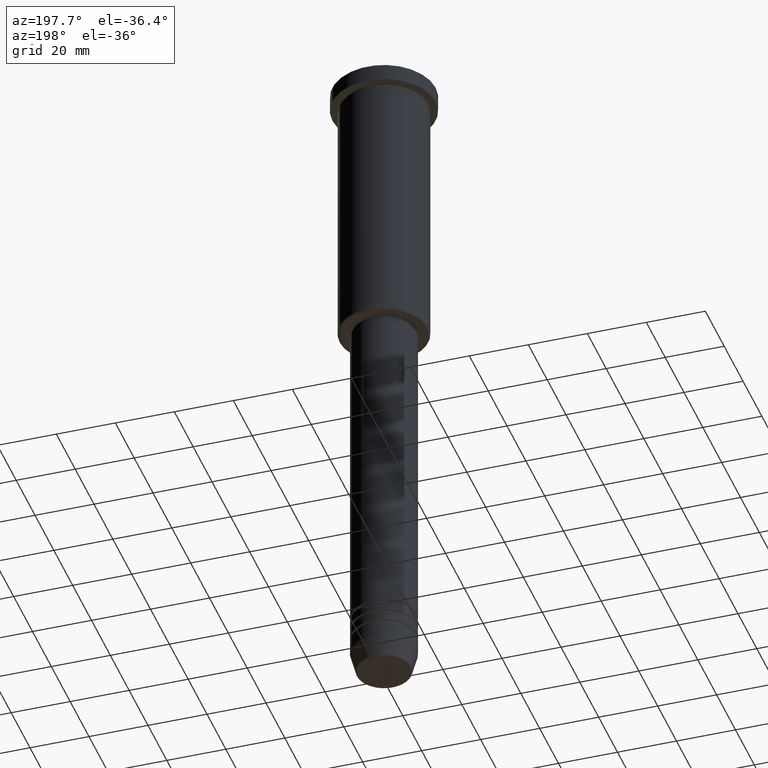
[diagram: clean part render]
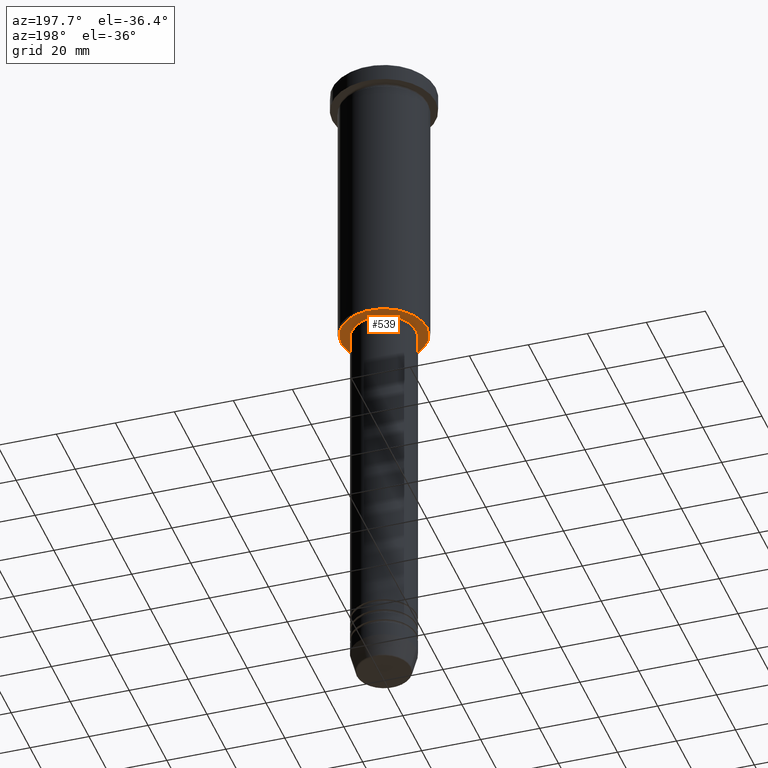
[diagram: same view with one face highlighted and labeled with its STEP entity id]
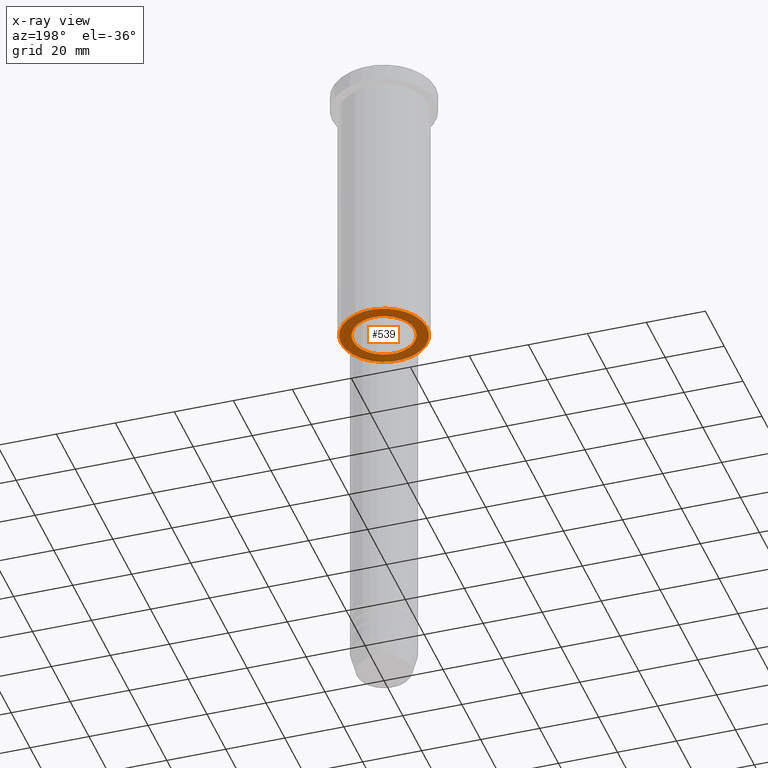
[diagram: x-ray of the same camera — body ghosted, the highlighted face saturated]
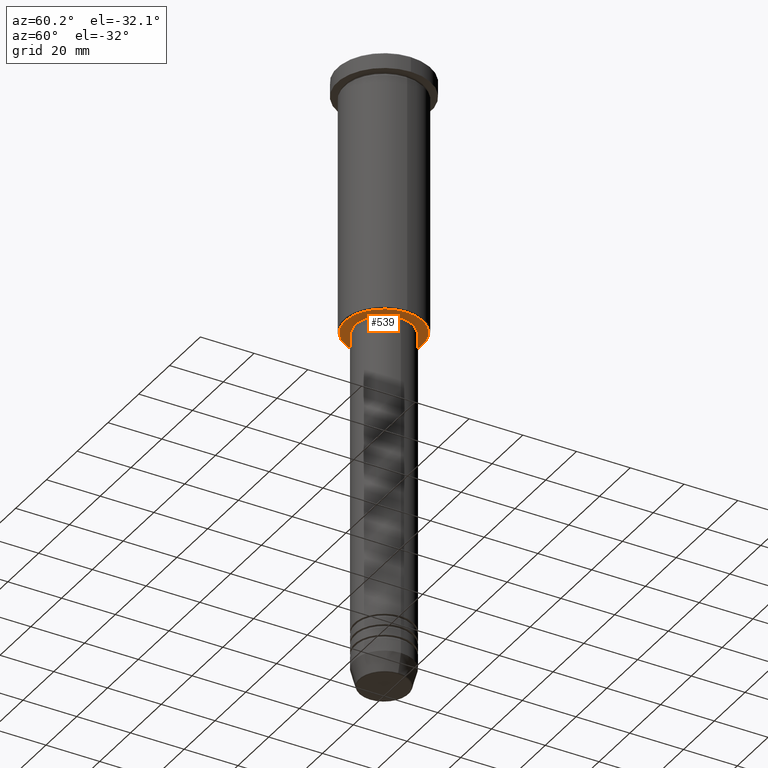
[diagram: same view with one face highlighted and labeled with its STEP entity id]
A machine part, auxiliary view. The second image highlights one B-rep face of the part: STEP entity #539.
The next image is the same camera in x-ray: the body ghosted, the highlighted face saturated — about 16% of this face is hidden behind the body in this view.
A second angle (auxiliary view) of the same face is appended — the face is thin or edge-on in the first view.
In plain terms, the highlighted planar face has unit normal (0, 0, -1).
Its self-contained STEP definition (entity closure, byte-faithful):
#12 = DIRECTION ( 'NONE',  ( -1.000000000000000000, 0.000000000000000000, 0.000000000000000000 ) ) ;
#15 = CARTESIAN_POINT ( 'NONE',  ( 0.000000000000000000, 15.00000000000000000, -96.00000000000002842 ) ) ;
#117 = FACE_OUTER_BOUND ( 'NONE', #1055, .T. ) ;
#125 = PLANE ( 'NONE',  #867 ) ;
#184 = DIRECTION ( 'NONE',  ( 1.000000000000000000, 0.000000000000000000, 0.000000000000000000 ) ) ;
#208 = AXIS2_PLACEMENT_3D ( 'NONE', #519, #348, #432 ) ;
#273 = EDGE_CURVE ( 'NONE', #362, #312, #284, .T. ) ;
#284 = CIRCLE ( 'NONE', #469, 10.49999999999999822 ) ;
#312 = VERTEX_POINT ( 'NONE', #1111 ) ;
#323 = ORIENTED_EDGE ( 'NONE', *, *, #827, .T. ) ;
#348 = DIRECTION ( 'NONE',  ( -0.000000000000000000, -0.000000000000000000, 1.000000000000000000 ) ) ;
#349 = CARTESIAN_POINT ( 'NONE',  ( 14.49999999999992717, 0.000000000000000000, -96.00000000000002842 ) ) ;
#362 = VERTEX_POINT ( 'NONE', #390 ) ;
#382 = AXIS2_PLACEMENT_3D ( 'NONE', #670, #753, #665 ) ;
#390 = CARTESIAN_POINT ( 'NONE',  ( -10.49999999999999822, 1.285879139104720633E-15, -96.00000000000002842 ) ) ;
#432 = DIRECTION ( 'NONE',  ( 1.000000000000000000, 0.000000000000000000, 0.000000000000000000 ) ) ;
#440 = CIRCLE ( 'NONE', #208, 10.49999999999999822 ) ;
#461 = FACE_BOUND ( 'NONE', #495, .T. ) ;
#469 = AXIS2_PLACEMENT_3D ( 'NONE', #639, #721, #184 ) ;
#495 = EDGE_LOOP ( 'NONE', ( #1094, #955 ) ) ;
#519 = CARTESIAN_POINT ( 'NONE',  ( 0.000000000000000000, 0.000000000000000000, -96.00000000000002842 ) ) ;
#539 = ADVANCED_FACE ( 'NONE', ( #117, #461 ), #125, .T. ) ;
#558 = CIRCLE ( 'NONE', #382, 14.49999999999992717 ) ;
#566 = DIRECTION ( 'NONE',  ( -1.000000000000000000, 0.000000000000000000, -0.000000000000000000 ) ) ;
#616 = ORIENTED_EDGE ( 'NONE', *, *, #922, .T. ) ;
#626 = CARTESIAN_POINT ( 'NONE',  ( -14.49999999999992717, 1.806354028742341069E-15, -96.00000000000002842 ) ) ;
#639 = CARTESIAN_POINT ( 'NONE',  ( 0.000000000000000000, 0.000000000000000000, -96.00000000000002842 ) ) ;
#665 = DIRECTION ( 'NONE',  ( -1.000000000000000000, 0.000000000000000000, 0.000000000000000000 ) ) ;
#670 = CARTESIAN_POINT ( 'NONE',  ( 0.000000000000000000, 0.000000000000000000, -96.00000000000002842 ) ) ;
#721 = DIRECTION ( 'NONE',  ( -0.000000000000000000, -0.000000000000000000, 1.000000000000000000 ) ) ;
#753 = DIRECTION ( 'NONE',  ( 0.000000000000000000, 0.000000000000000000, -1.000000000000000000 ) ) ;
#803 = VERTEX_POINT ( 'NONE', #349 ) ;
#827 = EDGE_CURVE ( 'NONE', #1147, #803, #928, .T. ) ;
#847 = AXIS2_PLACEMENT_3D ( 'NONE', #1077, #984, #12 ) ;
#853 = DIRECTION ( 'NONE',  ( 0.000000000000000000, 0.000000000000000000, -1.000000000000000000 ) ) ;
#867 = AXIS2_PLACEMENT_3D ( 'NONE', #15, #853, #566 ) ;
#922 = EDGE_CURVE ( 'NONE', #803, #1147, #558, .T. ) ;
#928 = CIRCLE ( 'NONE', #847, 14.49999999999992717 ) ;
#955 = ORIENTED_EDGE ( 'NONE', *, *, #273, .T. ) ;
#984 = DIRECTION ( 'NONE',  ( 0.000000000000000000, 0.000000000000000000, -1.000000000000000000 ) ) ;
#1055 = EDGE_LOOP ( 'NONE', ( #616, #323 ) ) ;
#1077 = CARTESIAN_POINT ( 'NONE',  ( 0.000000000000000000, 0.000000000000000000, -96.00000000000002842 ) ) ;
#1094 = ORIENTED_EDGE ( 'NONE', *, *, #1102, .T. ) ;
#1102 = EDGE_CURVE ( 'NONE', #312, #362, #440, .T. ) ;
#1111 = CARTESIAN_POINT ( 'NONE',  ( 10.49999999999999822, 0.000000000000000000, -96.00000000000002842 ) ) ;
#1147 = VERTEX_POINT ( 'NONE', #626 ) ;